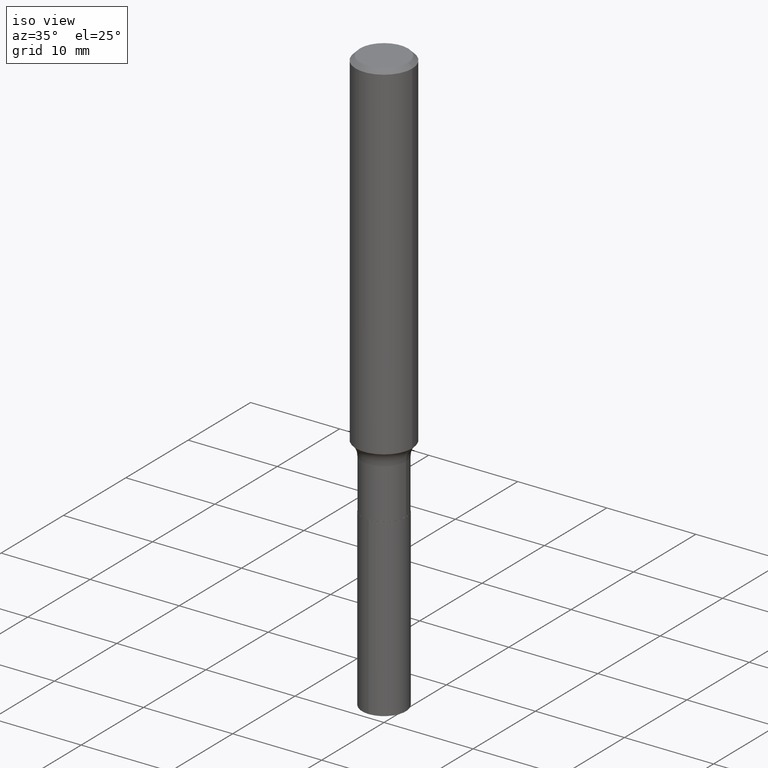
[diagram: clean part render]
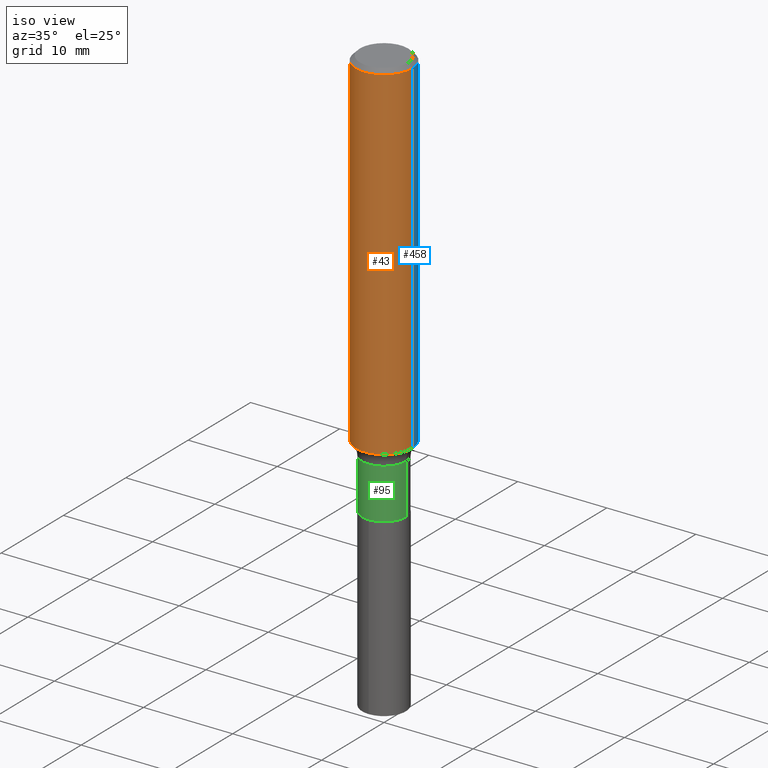
[diagram: same view with three faces highlighted in distinct colors, each labeled with its STEP entity id]
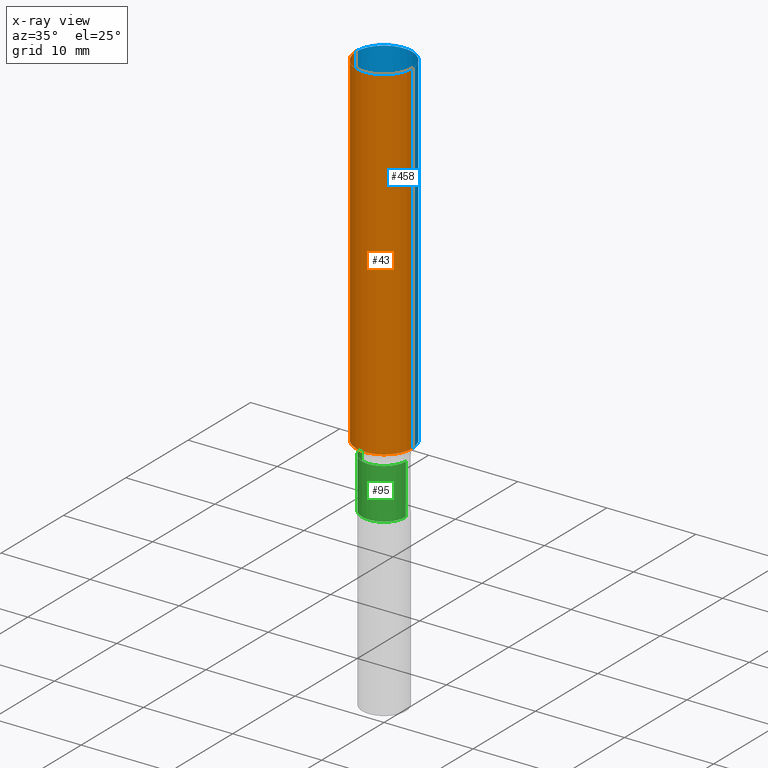
[diagram: x-ray of the same camera — body ghosted, the three highlighted faces saturated]
A machine part, iso view with three faces highlighted in distinct colors.
The next image is the same camera in x-ray (body ghosted, the three faces saturated) — at least one of them is partly hidden behind the body in this view.
Their STEP definitions:

[orange] entity #43 — the highlighted cylindrical surface (edge-blend (fillet) strip) has radius 3.175 mm, axis along (-0, 0, 1).
#10 = ORIENTED_EDGE ( 'NONE', *, *, #220, .F. ) ;
#23 = DIRECTION ( 'NONE',  ( 1.000000000000000000, -6.982962677686266711E-15, 0.000000000000000000 ) ) ;
#27 = CARTESIAN_POINT ( 'NONE',  ( 0.1250000000000000833, -8.728703347107839305E-16, 6.095220969744923945E-30 ) ) ;
#34 = CYLINDRICAL_SURFACE ( 'NONE', #401, 0.1250000000000000833 ) ;
#43 = ADVANCED_FACE ( 'NONE', ( #286 ), #34, .T. ) ;
#49 = EDGE_CURVE ( 'NONE', #393, #170, #471, .T. ) ;
#61 = ORIENTED_EDGE ( 'NONE', *, *, #89, .T. ) ;
#89 = EDGE_CURVE ( 'NONE', #170, #91, #358, .T. ) ;
#91 = VERTEX_POINT ( 'NONE', #321 ) ;
#104 = DIRECTION ( 'NONE',  ( 1.000000000000000000, -6.982962677686266711E-15, 4.876176775795935793E-29 ) ) ;
#113 = CARTESIAN_POINT ( 'NONE',  ( -0.1250000000000001388, -4.474477035340341246E-15, -1.535925567002259795 ) ) ;
#114 = VECTOR ( 'NONE', #241, 39.37007874015748143 ) ;
#118 = ORIENTED_EDGE ( 'NONE', *, *, #145, .F. ) ;
#130 = CARTESIAN_POINT ( 'NONE',  ( -0.1250000000000000000, -1.825881945371762185E-15, -0.01875000000000013115 ) ) ;
#145 = EDGE_CURVE ( 'NONE', #208, #91, #292, .T. ) ;
#153 = AXIS2_PLACEMENT_3D ( 'NONE', #247, #211, #23 ) ;
#170 = VERTEX_POINT ( 'NONE', #352 ) ;
#181 = DIRECTION ( 'NONE',  ( -2.445468806185136597E-29, 3.491481338843145583E-15, 1.000000000000000000 ) ) ;
#208 = VERTEX_POINT ( 'NONE', #130 ) ;
#211 = DIRECTION ( 'NONE',  ( -2.445468806185136597E-29, 3.491481338843145583E-15, 1.000000000000000000 ) ) ;
#220 = EDGE_CURVE ( 'NONE', #393, #208, #278, .T. ) ;
#241 = DIRECTION ( 'NONE',  ( -2.445468806185136877E-29, 3.491481338843145188E-15, 1.000000000000000000 ) ) ;
#242 = DIRECTION ( 'NONE',  ( -2.445468806185136877E-29, 3.491481338843145188E-15, 1.000000000000000000 ) ) ;
#247 = CARTESIAN_POINT ( 'NONE',  ( 4.585254011597162998E-31, -6.546527510330944066E-17, -0.01875000000000013115 ) ) ;
#275 = ORIENTED_EDGE ( 'NONE', *, *, #49, .T. ) ;
#278 = LINE ( 'NONE', #440, #114 ) ;
#286 = FACE_OUTER_BOUND ( 'NONE', #378, .T. ) ;
#292 = CIRCLE ( 'NONE', #153, 0.1250000000000000000 ) ;
#321 = CARTESIAN_POINT ( 'NONE',  ( 0.1250000000000000000, -9.383356098140928781E-16, -0.01875000000000013115 ) ) ;
#352 = CARTESIAN_POINT ( 'NONE',  ( 0.1250000000000001388, -6.235525789751252183E-15, -1.535925567002259795 ) ) ;
#358 = LINE ( 'NONE', #27, #362 ) ;
#362 = VECTOR ( 'NONE', #242, 39.37007874015748143 ) ;
#369 = CARTESIAN_POINT ( 'NONE',  ( 3.756058062726244785E-29, -5.362655455040467267E-15, -1.535925567002259795 ) ) ;
#378 = EDGE_LOOP ( 'NONE', ( #10, #275, #61, #118 ) ) ;
#393 = VERTEX_POINT ( 'NONE', #113 ) ;
#401 = AXIS2_PLACEMENT_3D ( 'NONE', #405, #438, #104 ) ;
#405 = CARTESIAN_POINT ( 'NONE',  ( 0.000000000000000000, 0.000000000000000000, 0.000000000000000000 ) ) ;
#432 = AXIS2_PLACEMENT_3D ( 'NONE', #369, #181, #485 ) ;
#438 = DIRECTION ( 'NONE',  ( -2.445468806185136597E-29, 3.491481338843145583E-15, 1.000000000000000000 ) ) ;
#440 = CARTESIAN_POINT ( 'NONE',  ( -0.1250000000000000833, 8.881784197001258240E-16, -6.148668862818636431E-30 ) ) ;
#471 = CIRCLE ( 'NONE', #432, 0.1250000000000001665 ) ;
#485 = DIRECTION ( 'NONE',  ( 1.000000000000000000, -6.982962677686269077E-15, 0.000000000000000000 ) ) ;

[blue] entity #458 — the highlighted cylindrical surface (edge-blend (fillet) strip) has radius 3.175 mm, axis along (-0, 0, 1).
#1 = DIRECTION ( 'NONE',  ( 1.000000000000000000, -6.982962677686266711E-15, 4.876176775795935793E-29 ) ) ;
#2 = DIRECTION ( 'NONE',  ( -2.445468806185136597E-29, 3.491481338843145583E-15, 1.000000000000000000 ) ) ;
#12 = ORIENTED_EDGE ( 'NONE', *, *, #89, .F. ) ;
#20 = DIRECTION ( 'NONE',  ( -2.445468806185136597E-29, 3.491481338843145583E-15, 1.000000000000000000 ) ) ;
#27 = CARTESIAN_POINT ( 'NONE',  ( 0.1250000000000000833, -8.728703347107839305E-16, 6.095220969744923945E-30 ) ) ;
#29 = AXIS2_PLACEMENT_3D ( 'NONE', #473, #20, #175 ) ;
#69 = CYLINDRICAL_SURFACE ( 'NONE', #281, 0.1250000000000000833 ) ;
#89 = EDGE_CURVE ( 'NONE', #170, #91, #358, .T. ) ;
#91 = VERTEX_POINT ( 'NONE', #321 ) ;
#113 = CARTESIAN_POINT ( 'NONE',  ( -0.1250000000000001388, -4.474477035340341246E-15, -1.535925567002259795 ) ) ;
#114 = VECTOR ( 'NONE', #241, 39.37007874015748143 ) ;
#121 = CIRCLE ( 'NONE', #29, 0.1250000000000000000 ) ;
#130 = CARTESIAN_POINT ( 'NONE',  ( -0.1250000000000000000, -1.825881945371762185E-15, -0.01875000000000013115 ) ) ;
#170 = VERTEX_POINT ( 'NONE', #352 ) ;
#171 = EDGE_CURVE ( 'NONE', #91, #208, #121, .T. ) ;
#175 = DIRECTION ( 'NONE',  ( 1.000000000000000000, -6.982962677686266711E-15, 0.000000000000000000 ) ) ;
#182 = FACE_OUTER_BOUND ( 'NONE', #344, .T. ) ;
#195 = ORIENTED_EDGE ( 'NONE', *, *, #220, .T. ) ;
#205 = AXIS2_PLACEMENT_3D ( 'NONE', #219, #2, #487 ) ;
#208 = VERTEX_POINT ( 'NONE', #130 ) ;
#219 = CARTESIAN_POINT ( 'NONE',  ( 3.756058062726244785E-29, -5.362655455040467267E-15, -1.535925567002259795 ) ) ;
#220 = EDGE_CURVE ( 'NONE', #393, #208, #278, .T. ) ;
#222 = ORIENTED_EDGE ( 'NONE', *, *, #408, .T. ) ;
#227 = DIRECTION ( 'NONE',  ( -2.445468806185136597E-29, 3.491481338843145583E-15, 1.000000000000000000 ) ) ;
#241 = DIRECTION ( 'NONE',  ( -2.445468806185136877E-29, 3.491481338843145188E-15, 1.000000000000000000 ) ) ;
#242 = DIRECTION ( 'NONE',  ( -2.445468806185136877E-29, 3.491481338843145188E-15, 1.000000000000000000 ) ) ;
#278 = LINE ( 'NONE', #440, #114 ) ;
#281 = AXIS2_PLACEMENT_3D ( 'NONE', #486, #227, #1 ) ;
#321 = CARTESIAN_POINT ( 'NONE',  ( 0.1250000000000000000, -9.383356098140928781E-16, -0.01875000000000013115 ) ) ;
#328 = CIRCLE ( 'NONE', #205, 0.1250000000000001665 ) ;
#344 = EDGE_LOOP ( 'NONE', ( #222, #195, #435, #12 ) ) ;
#352 = CARTESIAN_POINT ( 'NONE',  ( 0.1250000000000001388, -6.235525789751252183E-15, -1.535925567002259795 ) ) ;
#358 = LINE ( 'NONE', #27, #362 ) ;
#362 = VECTOR ( 'NONE', #242, 39.37007874015748143 ) ;
#393 = VERTEX_POINT ( 'NONE', #113 ) ;
#408 = EDGE_CURVE ( 'NONE', #170, #393, #328, .T. ) ;
#435 = ORIENTED_EDGE ( 'NONE', *, *, #171, .F. ) ;
#440 = CARTESIAN_POINT ( 'NONE',  ( -0.1250000000000000833, 8.881784197001258240E-16, -6.148668862818636431E-30 ) ) ;
#458 = ADVANCED_FACE ( 'NONE', ( #182 ), #69, .T. ) ;
#473 = CARTESIAN_POINT ( 'NONE',  ( 4.585254011597162998E-31, -6.546527510330944066E-17, -0.01875000000000013115 ) ) ;
#486 = CARTESIAN_POINT ( 'NONE',  ( 0.000000000000000000, 0.000000000000000000, 0.000000000000000000 ) ) ;
#487 = DIRECTION ( 'NONE',  ( 1.000000000000000000, -6.982962677686269077E-15, 0.000000000000000000 ) ) ;

[green] entity #95 — the highlighted cylindrical surface (edge-blend (fillet) strip) has radius 2.4574 mm, axis along (-0, 0, 1).
#4 = VERTEX_POINT ( 'NONE', #309 ) ;
#15 = EDGE_CURVE ( 'NONE', #339, #4, #213, .T. ) ;
#16 = AXIS2_PLACEMENT_3D ( 'NONE', #57, #143, #209 ) ;
#55 = EDGE_CURVE ( 'NONE', #248, #466, #400, .T. ) ;
#57 = CARTESIAN_POINT ( 'NONE',  ( 3.902968214671478497E-29, -5.572404216793660273E-15, -1.596000000000000085 ) ) ;
#63 = FACE_OUTER_BOUND ( 'NONE', #311, .T. ) ;
#67 = VECTOR ( 'NONE', #322, 39.37007874015748143 ) ;
#95 = ADVANCED_FACE ( 'NONE', ( #63 ), #101, .T. ) ;
#98 = CARTESIAN_POINT ( 'NONE',  ( 4.445862289644578656E-29, -6.347513074016838623E-15, -1.818000000000000060 ) ) ;
#101 = CYLINDRICAL_SURFACE ( 'NONE', #254, 0.09674999999999996103 ) ;
#103 = CARTESIAN_POINT ( 'NONE',  ( 0.000000000000000000, 0.000000000000000000, 0.000000000000000000 ) ) ;
#109 = EDGE_CURVE ( 'NONE', #4, #466, #200, .T. ) ;
#143 = DIRECTION ( 'NONE',  ( -2.445468806185136597E-29, 3.491481338843145583E-15, 1.000000000000000000 ) ) ;
#144 = CARTESIAN_POINT ( 'NONE',  ( 0.09674999999999996103, -6.756016390661460400E-16, 4.717701030582566422E-30 ) ) ;
#178 = ORIENTED_EDGE ( 'NONE', *, *, #55, .T. ) ;
#180 = EDGE_CURVE ( 'NONE', #339, #248, #187, .T. ) ;
#187 = CIRCLE ( 'NONE', #454, 0.09674999999999998879 ) ;
#200 = CIRCLE ( 'NONE', #16, 0.09674999999999996103 ) ;
#207 = CARTESIAN_POINT ( 'NONE',  ( 0.09674999999999998879, -7.023114713082984958E-15, -1.818000000000000060 ) ) ;
#209 = DIRECTION ( 'NONE',  ( 1.000000000000000000, -6.982962677686267499E-15, 0.000000000000000000 ) ) ;
#213 = LINE ( 'NONE', #441, #67 ) ;
#248 = VERTEX_POINT ( 'NONE', #207 ) ;
#254 = AXIS2_PLACEMENT_3D ( 'NONE', #103, #390, #437 ) ;
#283 = ORIENTED_EDGE ( 'NONE', *, *, #180, .T. ) ;
#290 = DIRECTION ( 'NONE',  ( -2.445468806185136877E-29, 3.491481338843145188E-15, 1.000000000000000000 ) ) ;
#309 = CARTESIAN_POINT ( 'NONE',  ( -0.09674999999999996103, -5.272508548557352893E-15, -1.596000000000000085 ) ) ;
#311 = EDGE_LOOP ( 'NONE', ( #457, #283, #178, #332 ) ) ;
#315 = DIRECTION ( 'NONE',  ( -2.445468806185136597E-29, 3.491481338843145583E-15, 1.000000000000000000 ) ) ;
#322 = DIRECTION ( 'NONE',  ( -2.445468806185136877E-29, 3.491481338843145188E-15, 1.000000000000000000 ) ) ;
#332 = ORIENTED_EDGE ( 'NONE', *, *, #109, .F. ) ;
#339 = VERTEX_POINT ( 'NONE', #444 ) ;
#373 = VECTOR ( 'NONE', #290, 39.37007874015748143 ) ;
#390 = DIRECTION ( 'NONE',  ( -2.445468806185136597E-29, 3.491481338843145583E-15, 1.000000000000000000 ) ) ;
#400 = LINE ( 'NONE', #144, #373 ) ;
#437 = DIRECTION ( 'NONE',  ( 1.000000000000000000, -6.982962677686266711E-15, 4.876176775795936353E-29 ) ) ;
#441 = CARTESIAN_POINT ( 'NONE',  ( -0.09674999999999996103, 6.874500968478966529E-16, -4.759069699821619835E-30 ) ) ;
#444 = CARTESIAN_POINT ( 'NONE',  ( -0.09674999999999998879, -5.272508548557352893E-15, -1.818000000000000060 ) ) ;
#452 = CARTESIAN_POINT ( 'NONE',  ( 0.09674999999999996103, -6.248005855859806608E-15, -1.596000000000000085 ) ) ;
#454 = AXIS2_PLACEMENT_3D ( 'NONE', #98, #315, #475 ) ;
#457 = ORIENTED_EDGE ( 'NONE', *, *, #15, .F. ) ;
#466 = VERTEX_POINT ( 'NONE', #452 ) ;
#475 = DIRECTION ( 'NONE',  ( 1.000000000000000000, -6.982962677686265922E-15, 0.000000000000000000 ) ) ;